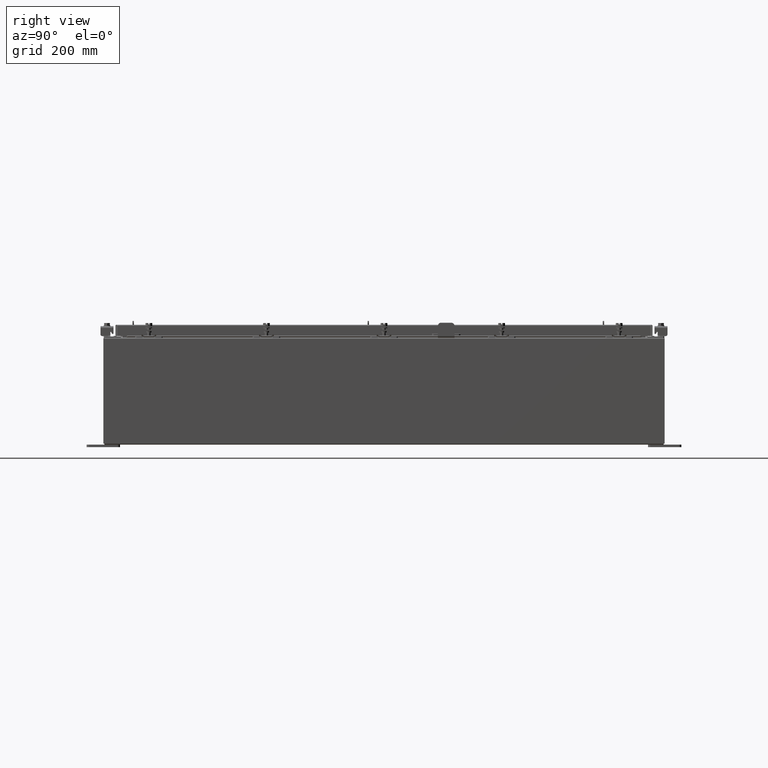
[diagram: clean part render]
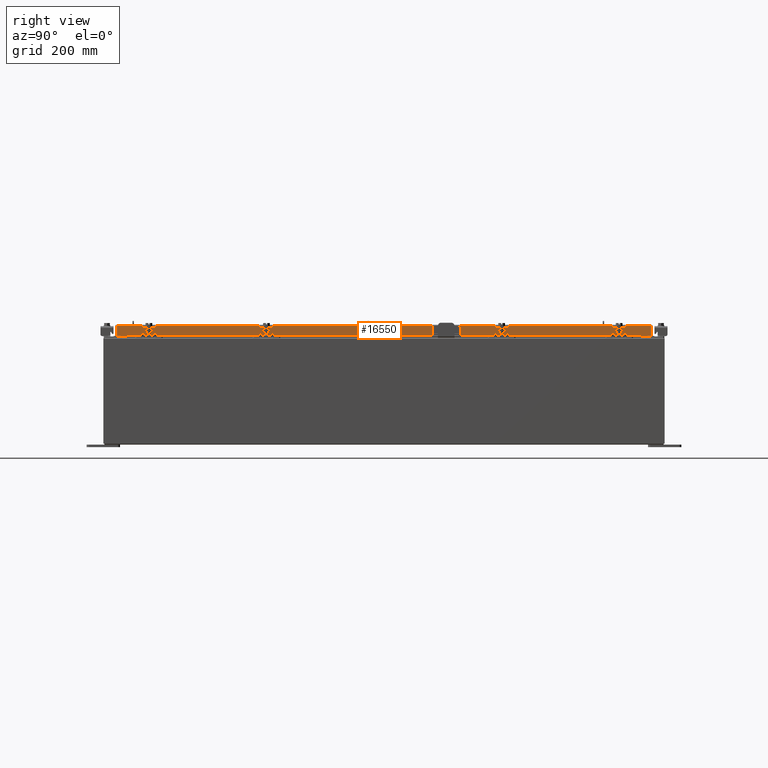
[diagram: same view with one face highlighted and labeled with its STEP entity id]
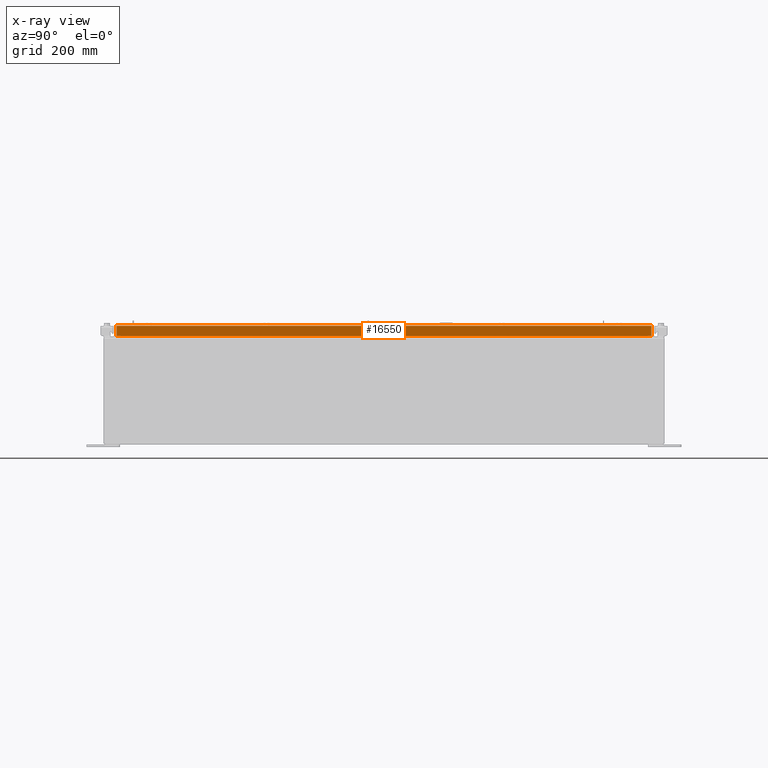
[diagram: x-ray of the same camera — body ghosted, the highlighted face saturated]
A machine part, right view. The second image highlights one B-rep face of the part: STEP entity #16550.
The next image is the same camera in x-ray: the body ghosted, the highlighted face saturated — about 0% of this face is hidden behind the body in this view.
In plain terms, the highlighted planar face has unit normal (1, 0, 0).
Its self-contained STEP definition (entity closure, byte-faithful):
#174 = CARTESIAN_POINT ( 'NONE',  ( 14.07800000000000300, -20.09400000000000100, -0.8499999999999996400 ) ) ;
#707 = EDGE_CURVE ( 'NONE', #5616, #15948, #2093, .T. ) ;
#817 = VECTOR ( 'NONE', #5294, 39.37007874015748100 ) ;
#1043 = ORIENTED_EDGE ( 'NONE', *, *, #17548, .F. ) ;
#1753 = CARTESIAN_POINT ( 'NONE',  ( 14.07800000000000300, -20.00515786437626500, -0.8499999999999996400 ) ) ;
#2093 = LINE ( 'NONE', #21562, #11640 ) ;
#2596 = DIRECTION ( 'NONE',  ( -2.818880942772360100E-015, -6.982962677686265900E-015, 1.000000000000000000 ) ) ;
#2966 = VECTOR ( 'NONE', #17051, 39.37007874015748100 ) ;
#4620 = VERTEX_POINT ( 'NONE', #1753 ) ;
#4721 = LINE ( 'NONE', #174, #9828 ) ;
#5055 = LINE ( 'NONE', #15865, #24595 ) ;
#5172 = DIRECTION ( 'NONE',  ( -2.818880942772360100E-015, -6.982962677686265900E-015, 1.000000000000000000 ) ) ;
#5256 = DIRECTION ( 'NONE',  ( 1.000000000000000000, 0.0000000000000000000, 2.818880942772360100E-015 ) ) ;
#5294 = DIRECTION ( 'NONE',  ( 0.0000000000000000000, -1.000000000000000000, 0.0000000000000000000 ) ) ;
#5331 = FACE_OUTER_BOUND ( 'NONE', #15241, .T. ) ;
#5616 = VERTEX_POINT ( 'NONE', #10946 ) ;
#9049 = CARTESIAN_POINT ( 'NONE',  ( 14.07799999999999900, 0.0000000000000000000, 3.994501956836086200E-014 ) ) ;
#9254 = LINE ( 'NONE', #15137, #2966 ) ;
#9828 = VECTOR ( 'NONE', #15399, 39.37007874015748100 ) ;
#10946 = CARTESIAN_POINT ( 'NONE',  ( 14.07800000000000300, 20.00515786437627200, -0.8499999999999996400 ) ) ;
#10970 = LINE ( 'NONE', #16710, #817 ) ;
#11530 = VERTEX_POINT ( 'NONE', #16319 ) ;
#11640 = VECTOR ( 'NONE', #21732, 39.37007874015748100 ) ;
#12179 = ORIENTED_EDGE ( 'NONE', *, *, #15329, .T. ) ;
#12430 = LINE ( 'NONE', #18379, #19602 ) ;
#13406 = ORIENTED_EDGE ( 'NONE', *, *, #16772, .T. ) ;
#15108 = CARTESIAN_POINT ( 'NONE',  ( 14.07799999999998900, 19.25515786437626900, -0.8500000000000018700 ) ) ;
#15137 = CARTESIAN_POINT ( 'NONE',  ( 14.07799999999999900, 4.769245925041668600E-018, -0.08770000000000115200 ) ) ;
#15241 = EDGE_LOOP ( 'NONE', ( #20539, #16225, #1043, #16471, #13406, #12179 ) ) ;
#15329 = EDGE_CURVE ( 'NONE', #16911, #11530, #9254, .T. ) ;
#15399 = DIRECTION ( 'NONE',  ( 0.0000000000000000000, -1.000000000000000000, 0.0000000000000000000 ) ) ;
#15865 = CARTESIAN_POINT ( 'NONE',  ( 14.07799999999999900, -20.00515786437626900, -0.07469999999999978000 ) ) ;
#15948 = VERTEX_POINT ( 'NONE', #15108 ) ;
#16225 = ORIENTED_EDGE ( 'NONE', *, *, #17067, .F. ) ;
#16271 = EDGE_CURVE ( 'NONE', #4620, #11530, #5055, .T. ) ;
#16319 = CARTESIAN_POINT ( 'NONE',  ( 14.07799999999999900, -20.00515786437626900, -0.08770000000000224800 ) ) ;
#16471 = ORIENTED_EDGE ( 'NONE', *, *, #707, .F. ) ;
#16550 = ADVANCED_FACE ( 'NONE', ( #5331 ), #16658, .T. ) ;
#16658 = PLANE ( 'NONE',  #24267 ) ;
#16710 = CARTESIAN_POINT ( 'NONE',  ( 14.07799999999998900, 19.25515786437627200, -0.8500000000000018700 ) ) ;
#16772 = EDGE_CURVE ( 'NONE', #5616, #16911, #12430, .T. ) ;
#16911 = VERTEX_POINT ( 'NONE', #22573 ) ;
#17051 = DIRECTION ( 'NONE',  ( 1.532946003362416700E-031, -1.000000000000000000, -5.438136744628771400E-017 ) ) ;
#17067 = EDGE_CURVE ( 'NONE', #17241, #4620, #4721, .T. ) ;
#17241 = VERTEX_POINT ( 'NONE', #19527 ) ;
#17548 = EDGE_CURVE ( 'NONE', #15948, #17241, #10970, .T. ) ;
#18379 = CARTESIAN_POINT ( 'NONE',  ( 14.07799999999999900, 20.00515786437626900, 1.796402902965222500E-013 ) ) ;
#18544 = DIRECTION ( 'NONE',  ( 2.818880942772360100E-015, 0.0000000000000000000, -1.000000000000000000 ) ) ;
#19527 = CARTESIAN_POINT ( 'NONE',  ( 14.07799999999998900, -19.25515786437626500, -0.8500000000000018700 ) ) ;
#19602 = VECTOR ( 'NONE', #5172, 39.37007874015748100 ) ;
#20539 = ORIENTED_EDGE ( 'NONE', *, *, #16271, .F. ) ;
#21562 = CARTESIAN_POINT ( 'NONE',  ( 14.07800000000000300, -20.09400000000000100, -0.8499999999999996400 ) ) ;
#21732 = DIRECTION ( 'NONE',  ( 0.0000000000000000000, -1.000000000000000000, 0.0000000000000000000 ) ) ;
#22573 = CARTESIAN_POINT ( 'NONE',  ( 14.07799999999999900, 20.00515786437626900, -0.08770000000000115200 ) ) ;
#24267 = AXIS2_PLACEMENT_3D ( 'NONE', #9049, #5256, #18544 ) ;
#24595 = VECTOR ( 'NONE', #2596, 39.37007874015748100 ) ;